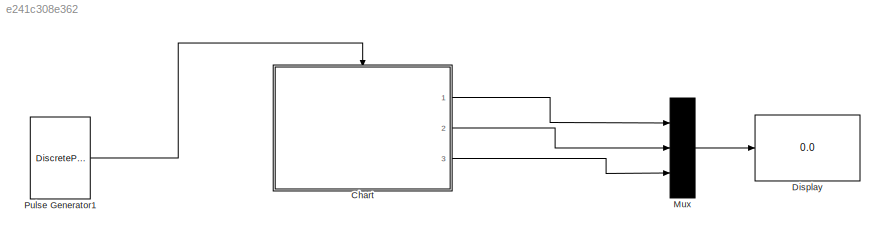
MODEL slx_e241c308e362
KIND model
CONFIG AbsTol = auto
CONFIG EnableMultiTasking = off
CONFIG FixedStep = auto
CONFIG MaxStep = auto
CONFIG MinStep = auto
CONFIG RelTol = 1e-3
CONFIG SampleTimeConstraint = Unconstrained
CONFIG SolverName = VariableStepAuto
CONFIG StartTime = 0.0
CONFIG StopTime = 120
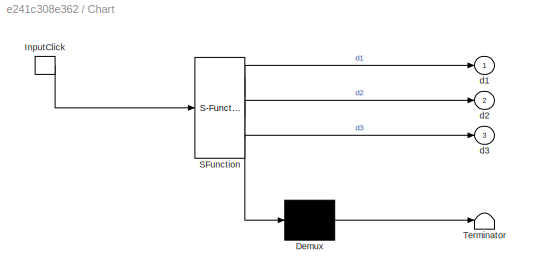
BLOCK [SubSystem] Chart
  ErrorFcn = Stateflow.Translate.translate
  PermitHierarchicalResolution = ExplicitOnly
  Ports = [0, 3, 0, 1]
  RequestExecContextInheritance = off
  SFBlockType = Chart
  TreatAsAtomicUnit = on
BLOCK [Demux] Chart/ Demux 
  Outputs = 1
  Ports = [1, 1]
BLOCK [S-Function] Chart/ SFunction 
  EnableBusSupport = on
  FunctionName = sf_sfun
  PortCounts = [1 4]
  Ports = [1, 4]
  SFcnIsStateOwnerBlock = off
  SFunctionDeploymentMode = off
  Tag = Stateflow S-Function 3
BLOCK [Terminator] Chart/ Terminator 
BLOCK [TriggerPort] Chart/InputClick
  Ports = [0, 1]
  ShowOutputPort = on
  StatesWhenEnabling = held
  VariantControl = (inherit)
BLOCK [Outport] Chart/d1
BLOCK [Outport] Chart/d2
  Port = 2
BLOCK [Outport] Chart/d3
  Port = 3
BLOCK [Display] Display
  Decimation = 1
  Ports = [1]
BLOCK [Mux] Mux
  DisplayOption = bar
  Inputs = 3
  Ports = [3, 1]
BLOCK [DiscretePulseGenerator] Pulse Generator1
  Period = 1
  Ports = [0, 1]
  PulseType = Time based
  PulseWidth = 50
LINE Chart:1 -> Mux:1
LINE Chart:2 -> Mux:2
LINE Chart:3 -> Mux:3
LINE Mux:1 -> Display:1
LINE Pulse Generator1:1 -> Chart:trigger
CHART Chart states=18 transitions=19
  STATE_LABEL 'digit1'
  STATE_LABEL 'First\nen:\nd1=1;'
  STATE_LABEL 'Two\nen:\nd1=2;'
  STATE_LABEL 'Zero\nen:\nd1=0;\n'
  STATE_LABEL 'Four\nen:\nd1=4;'
  STATE_LABEL 'Three\nen:\nd1=3;'
  STATE_LABEL 'InputClick'
  STATE_LABEL 'InputClick'
  STATE_LABEL 'InputClick'
  STATE_LABEL 'InputClick/{digit2.inc2}'
  STATE_LABEL 'InputClick'
  STATE_LABEL 'First\nen:\nd1=1;'
  STATE_LABEL 'Two\nen:\nd1=2;'
  STATE_LABEL 'Zero\nen:\nd1=0;\n'
  STATE_LABEL 'Four\nen:\nd1=4;'
  STATE_LABEL 'Three\nen:\nd1=3;'
  STATE_LABEL 'digit2'
  STATE_LABEL 'First\nen:\nd2=1;'
  STATE_LABEL 'Two\nen:\nd2=2;'
  STATE_LABEL 'Zero\nen:\nd2=0;\n'
  STATE_LABEL 'Four\nen:\nd2=4;'
  STATE_LABEL 'Three\nen:\nd2=3;'
  STATE_LABEL 'inc2'
  STATE_LABEL 'inc2'
  STATE_LABEL 'inc2'
  STATE_LABEL 'inc2 /{digit3.inc3}'
  STATE_LABEL 'inc2'
  STATE_LABEL 'First\nen:\nd2=1;'
  STATE_LABEL 'Two\nen:\nd2=2;'
  STATE_LABEL 'Zero\nen:\nd2=0;\n'
  STATE_LABEL 'Four\nen:\nd2=4;'
  STATE_LABEL 'Three\nen:\nd2=3;'
  STATE_LABEL 'digit3'
  STATE_LABEL 'First\nen:\nd3=1;'
  STATE_LABEL 'Two\nen:\nd3=2;'
  STATE_LABEL 'Zero\nen:\nd3=0;\n'
  STATE_LABEL 'Four\nen:\nd3=4;'
  STATE_LABEL 'Three\nen:\nd3=3;'
  STATE_LABEL 'inc3'
  STATE_LABEL 'inc3'
CHART  states=0 transitions=0
